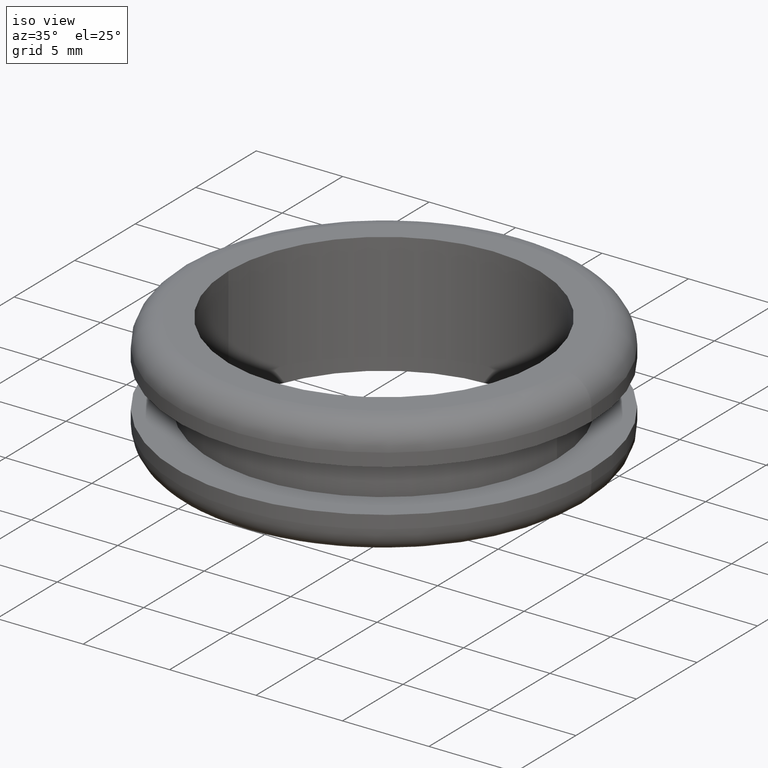
[diagram: clean part render]
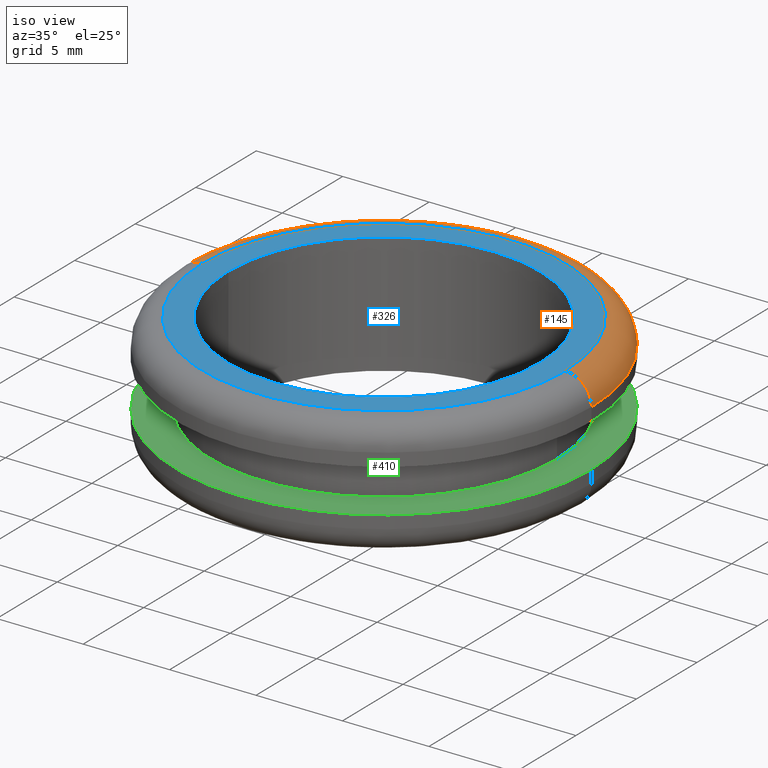
[diagram: same view with three faces highlighted in distinct colors, each labeled with its STEP entity id]
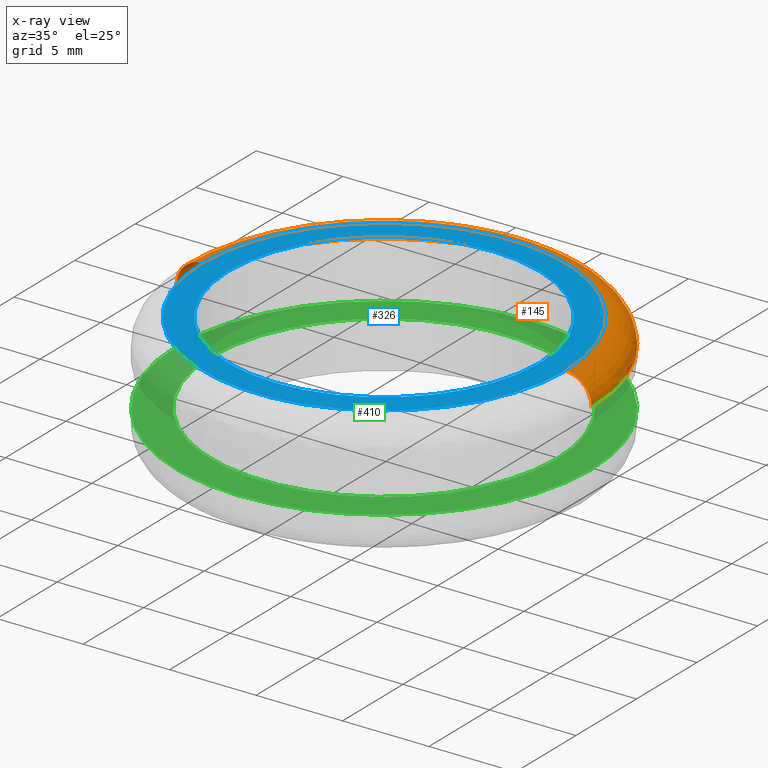
[diagram: x-ray of the same camera — body ghosted, the three highlighted faces saturated]
A machine part, iso view with three faces highlighted in distinct colors.
The next image is the same camera in x-ray (body ghosted, the three faces saturated) — at least one of them is partly hidden behind the body in this view.
Their STEP definitions:

[orange] entity #145 — the highlighted toroidal blend (fillet) surface has major radius 10.5 mm and minor (blend) radius 1.5 mm.
#18 = VERTEX_POINT ( 'NONE', #193 ) ;
#20 = DIRECTION ( 'NONE',  ( -1.000000000000000000, 0.0000000000000000000, 0.0000000000000000000 ) ) ;
#23 = CARTESIAN_POINT ( 'NONE',  ( 115.3968217177771200, 1.285879139105933300E-015, 147.3594493936724100 ) ) ;
#29 = EDGE_LOOP ( 'NONE', ( #378, #435, #438, #322 ) ) ;
#46 = EDGE_CURVE ( 'NONE', #411, #18, #302, .T. ) ;
#47 = CARTESIAN_POINT ( 'NONE',  ( 104.8968217177672100, 0.0000000000000000000, 147.3594493936724100 ) ) ;
#56 = DIRECTION ( 'NONE',  ( -1.000000000000000000, -1.224646799147352000E-016, 0.0000000000000000000 ) ) ;
#71 = CARTESIAN_POINT ( 'NONE',  ( 92.89682171775730500, 0.0000000000000000000, 147.3594493936724100 ) ) ;
#74 = CIRCLE ( 'NONE', #232, 10.50000000001000100 ) ;
#95 = EDGE_CURVE ( 'NONE', #296, #106, #74, .T. ) ;
#97 = CARTESIAN_POINT ( 'NONE',  ( 94.39682171775720600, 0.0000000000000000000, 148.8594493936722100 ) ) ;
#106 = VERTEX_POINT ( 'NONE', #338 ) ;
#129 = DIRECTION ( 'NONE',  ( -0.0000000000000000000, -1.000000000000000000, -0.0000000000000000000 ) ) ;
#130 = DIRECTION ( 'NONE',  ( -1.000000000000000000, 0.0000000000000000000, 0.0000000000000000000 ) ) ;
#142 = EDGE_CURVE ( 'NONE', #106, #18, #244, .T. ) ;
#143 = AXIS2_PLACEMENT_3D ( 'NONE', #271, #460, #130 ) ;
#145 = ADVANCED_FACE ( 'NONE', ( #260 ), #342, .T. ) ;
#184 = EDGE_CURVE ( 'NONE', #296, #411, #233, .T. ) ;
#189 = DIRECTION ( 'NONE',  ( 0.0000000000000000000, 0.0000000000000000000, -1.000000000000000000 ) ) ;
#193 = CARTESIAN_POINT ( 'NONE',  ( 116.8968217177771200, 1.469576158978036200E-015, 147.3594493936724100 ) ) ;
#218 = CARTESIAN_POINT ( 'NONE',  ( 104.8968217177672100, 0.0000000000000000000, 148.8594493936722100 ) ) ;
#224 = DIRECTION ( 'NONE',  ( -1.224646799147353200E-016, 1.000000000000000000, 0.0000000000000000000 ) ) ;
#232 = AXIS2_PLACEMENT_3D ( 'NONE', #218, #189, #420 ) ;
#233 = CIRCLE ( 'NONE', #439, 1.500000000000001300 ) ;
#244 = CIRCLE ( 'NONE', #283, 1.500000000000001300 ) ;
#249 = DIRECTION ( 'NONE',  ( 0.0000000000000000000, 0.0000000000000000000, -1.000000000000000000 ) ) ;
#260 = FACE_OUTER_BOUND ( 'NONE', #29, .T. ) ;
#271 = CARTESIAN_POINT ( 'NONE',  ( 104.8968217177672100, 0.0000000000000000000, 147.3594493936724100 ) ) ;
#283 = AXIS2_PLACEMENT_3D ( 'NONE', #23, #224, #56 ) ;
#296 = VERTEX_POINT ( 'NONE', #97 ) ;
#302 = CIRCLE ( 'NONE', #143, 12.00000000000990500 ) ;
#322 = ORIENTED_EDGE ( 'NONE', *, *, #184, .F. ) ;
#338 = CARTESIAN_POINT ( 'NONE',  ( 115.3968217177772100, 1.377727649041991000E-015, 148.8594493936722100 ) ) ;
#342 = TOROIDAL_SURFACE ( 'NONE', #400, 10.50000000000990100, 1.500000000000000000 ) ;
#378 = ORIENTED_EDGE ( 'NONE', *, *, #95, .T. ) ;
#400 = AXIS2_PLACEMENT_3D ( 'NONE', #47, #422, #20 ) ;
#411 = VERTEX_POINT ( 'NONE', #71 ) ;
#420 = DIRECTION ( 'NONE',  ( -1.000000000000000000, 0.0000000000000000000, 0.0000000000000000000 ) ) ;
#422 = DIRECTION ( 'NONE',  ( 0.0000000000000000000, 0.0000000000000000000, -1.000000000000000000 ) ) ;
#435 = ORIENTED_EDGE ( 'NONE', *, *, #142, .T. ) ;
#438 = ORIENTED_EDGE ( 'NONE', *, *, #46, .F. ) ;
#439 = AXIS2_PLACEMENT_3D ( 'NONE', #453, #129, #249 ) ;
#453 = CARTESIAN_POINT ( 'NONE',  ( 94.39682171775730500, 0.0000000000000000000, 147.3594493936724100 ) ) ;
#460 = DIRECTION ( 'NONE',  ( 0.0000000000000000000, 0.0000000000000000000, -1.000000000000000000 ) ) ;

[blue] entity #326 — the highlighted planar face has unit normal (0, 0, -1).
#14 = DIRECTION ( 'NONE',  ( -1.000000000000000000, 0.0000000000000000000, 0.0000000000000000000 ) ) ;
#21 = EDGE_CURVE ( 'NONE', #343, #465, #197, .T. ) ;
#44 = ORIENTED_EDGE ( 'NONE', *, *, #95, .F. ) ;
#55 = CARTESIAN_POINT ( 'NONE',  ( 113.8968217177772000, 0.0000000000000000000, 148.8594493936722100 ) ) ;
#74 = CIRCLE ( 'NONE', #232, 10.50000000001000100 ) ;
#93 = CARTESIAN_POINT ( 'NONE',  ( 104.8968217177672100, 0.0000000000000000000, 148.8594493936722100 ) ) ;
#95 = EDGE_CURVE ( 'NONE', #296, #106, #74, .T. ) ;
#96 = AXIS2_PLACEMENT_3D ( 'NONE', #392, #132, #350 ) ;
#97 = CARTESIAN_POINT ( 'NONE',  ( 94.39682171775720600, 0.0000000000000000000, 148.8594493936722100 ) ) ;
#106 = VERTEX_POINT ( 'NONE', #338 ) ;
#132 = DIRECTION ( 'NONE',  ( 0.0000000000000000000, 0.0000000000000000000, -1.000000000000000000 ) ) ;
#135 = EDGE_LOOP ( 'NONE', ( #309, #324 ) ) ;
#139 = AXIS2_PLACEMENT_3D ( 'NONE', #55, #379, #298 ) ;
#144 = CARTESIAN_POINT ( 'NONE',  ( 95.89682171775730500, 0.0000000000000000000, 148.8594493936722100 ) ) ;
#189 = DIRECTION ( 'NONE',  ( 0.0000000000000000000, 0.0000000000000000000, -1.000000000000000000 ) ) ;
#197 = CIRCLE ( 'NONE', #96, 9.000000000009903200 ) ;
#206 = EDGE_CURVE ( 'NONE', #465, #343, #220, .T. ) ;
#210 = CARTESIAN_POINT ( 'NONE',  ( 104.8968217177672100, 0.0000000000000000000, 148.8594493936722100 ) ) ;
#213 = CARTESIAN_POINT ( 'NONE',  ( 113.8968217177771200, 1.102182119233829800E-015, 148.8594493936722100 ) ) ;
#218 = CARTESIAN_POINT ( 'NONE',  ( 104.8968217177672100, 0.0000000000000000000, 148.8594493936722100 ) ) ;
#220 = CIRCLE ( 'NONE', #266, 9.000000000009903200 ) ;
#226 = DIRECTION ( 'NONE',  ( -1.000000000000000000, 0.0000000000000000000, 0.0000000000000000000 ) ) ;
#232 = AXIS2_PLACEMENT_3D ( 'NONE', #218, #189, #420 ) ;
#256 = EDGE_CURVE ( 'NONE', #106, #296, #413, .T. ) ;
#266 = AXIS2_PLACEMENT_3D ( 'NONE', #210, #313, #226 ) ;
#276 = FACE_OUTER_BOUND ( 'NONE', #303, .T. ) ;
#296 = VERTEX_POINT ( 'NONE', #97 ) ;
#298 = DIRECTION ( 'NONE',  ( -1.000000000000000000, 0.0000000000000000000, 0.0000000000000000000 ) ) ;
#300 = ORIENTED_EDGE ( 'NONE', *, *, #256, .F. ) ;
#303 = EDGE_LOOP ( 'NONE', ( #44, #300 ) ) ;
#307 = DIRECTION ( 'NONE',  ( 0.0000000000000000000, 0.0000000000000000000, -1.000000000000000000 ) ) ;
#309 = ORIENTED_EDGE ( 'NONE', *, *, #206, .T. ) ;
#313 = DIRECTION ( 'NONE',  ( 0.0000000000000000000, 0.0000000000000000000, -1.000000000000000000 ) ) ;
#324 = ORIENTED_EDGE ( 'NONE', *, *, #21, .T. ) ;
#326 = ADVANCED_FACE ( 'NONE', ( #276, #389 ), #450, .F. ) ;
#338 = CARTESIAN_POINT ( 'NONE',  ( 115.3968217177772100, 1.377727649041991000E-015, 148.8594493936722100 ) ) ;
#343 = VERTEX_POINT ( 'NONE', #213 ) ;
#350 = DIRECTION ( 'NONE',  ( -1.000000000000000000, 0.0000000000000000000, 0.0000000000000000000 ) ) ;
#379 = DIRECTION ( 'NONE',  ( 0.0000000000000000000, 0.0000000000000000000, -1.000000000000000000 ) ) ;
#389 = FACE_BOUND ( 'NONE', #135, .T. ) ;
#392 = CARTESIAN_POINT ( 'NONE',  ( 104.8968217177672100, 0.0000000000000000000, 148.8594493936722100 ) ) ;
#401 = AXIS2_PLACEMENT_3D ( 'NONE', #93, #307, #14 ) ;
#413 = CIRCLE ( 'NONE', #401, 10.50000000001000100 ) ;
#420 = DIRECTION ( 'NONE',  ( -1.000000000000000000, 0.0000000000000000000, 0.0000000000000000000 ) ) ;
#450 = PLANE ( 'NONE',  #139 ) ;
#465 = VERTEX_POINT ( 'NONE', #144 ) ;

[green] entity #410 — the highlighted planar face has unit normal (0, 0, -1).
#17 = AXIS2_PLACEMENT_3D ( 'NONE', #190, #157, #387 ) ;
#24 = VERTEX_POINT ( 'NONE', #311 ) ;
#31 = DIRECTION ( 'NONE',  ( 0.0000000000000000000, 0.0000000000000000000, -1.000000000000000000 ) ) ;
#39 = CARTESIAN_POINT ( 'NONE',  ( 116.8968217177771200, 1.469576158978035600E-015, 144.1094493936956000 ) ) ;
#67 = ORIENTED_EDGE ( 'NONE', *, *, #299, .F. ) ;
#79 = CARTESIAN_POINT ( 'NONE',  ( 114.8968217177772000, 0.0000000000000000000, 144.1094493936956000 ) ) ;
#80 = DIRECTION ( 'NONE',  ( 0.0000000000000000000, 0.0000000000000000000, -1.000000000000000000 ) ) ;
#90 = CIRCLE ( 'NONE', #393, 10.00000000000990300 ) ;
#91 = CARTESIAN_POINT ( 'NONE',  ( 94.89682171775730500, 0.0000000000000000000, 144.1094493936956000 ) ) ;
#101 = ORIENTED_EDGE ( 'NONE', *, *, #215, .F. ) ;
#111 = PLANE ( 'NONE',  #359 ) ;
#113 = CIRCLE ( 'NONE', #17, 12.00000000000990500 ) ;
#127 = CIRCLE ( 'NONE', #320, 12.00000000000990500 ) ;
#147 = EDGE_LOOP ( 'NONE', ( #160, #292 ) ) ;
#157 = DIRECTION ( 'NONE',  ( 0.0000000000000000000, 0.0000000000000000000, -1.000000000000000000 ) ) ;
#160 = ORIENTED_EDGE ( 'NONE', *, *, #452, .T. ) ;
#190 = CARTESIAN_POINT ( 'NONE',  ( 104.8968217177672100, 0.0000000000000000000, 144.1094493936956000 ) ) ;
#209 = DIRECTION ( 'NONE',  ( 0.0000000000000000000, 0.0000000000000000000, -1.000000000000000000 ) ) ;
#211 = CIRCLE ( 'NONE', #373, 10.00000000000990300 ) ;
#215 = EDGE_CURVE ( 'NONE', #24, #279, #127, .T. ) ;
#216 = VERTEX_POINT ( 'NONE', #314 ) ;
#217 = FACE_BOUND ( 'NONE', #147, .T. ) ;
#227 = EDGE_LOOP ( 'NONE', ( #101, #67 ) ) ;
#238 = EDGE_CURVE ( 'NONE', #216, #369, #211, .T. ) ;
#239 = DIRECTION ( 'NONE',  ( -1.000000000000000000, 0.0000000000000000000, 0.0000000000000000000 ) ) ;
#240 = CARTESIAN_POINT ( 'NONE',  ( 104.8968217177672100, 0.0000000000000000000, 144.1094493936956000 ) ) ;
#251 = DIRECTION ( 'NONE',  ( -1.000000000000000000, 0.0000000000000000000, 0.0000000000000000000 ) ) ;
#279 = VERTEX_POINT ( 'NONE', #39 ) ;
#285 = FACE_OUTER_BOUND ( 'NONE', #227, .T. ) ;
#291 = CARTESIAN_POINT ( 'NONE',  ( 104.8968217177672100, 0.0000000000000000000, 144.1094493936956000 ) ) ;
#292 = ORIENTED_EDGE ( 'NONE', *, *, #238, .T. ) ;
#299 = EDGE_CURVE ( 'NONE', #279, #24, #113, .T. ) ;
#301 = CARTESIAN_POINT ( 'NONE',  ( 104.8968217177672100, 0.0000000000000000000, 144.1094493936956000 ) ) ;
#311 = CARTESIAN_POINT ( 'NONE',  ( 92.89682171775730500, 0.0000000000000000000, 144.1094493936956000 ) ) ;
#314 = CARTESIAN_POINT ( 'NONE',  ( 114.8968217177771200, 1.224646799148565100E-015, 144.1094493936956000 ) ) ;
#320 = AXIS2_PLACEMENT_3D ( 'NONE', #301, #418, #251 ) ;
#330 = DIRECTION ( 'NONE',  ( -1.000000000000000000, 0.0000000000000000000, 0.0000000000000000000 ) ) ;
#359 = AXIS2_PLACEMENT_3D ( 'NONE', #79, #209, #471 ) ;
#369 = VERTEX_POINT ( 'NONE', #91 ) ;
#373 = AXIS2_PLACEMENT_3D ( 'NONE', #291, #80, #330 ) ;
#387 = DIRECTION ( 'NONE',  ( -1.000000000000000000, 0.0000000000000000000, 0.0000000000000000000 ) ) ;
#393 = AXIS2_PLACEMENT_3D ( 'NONE', #240, #31, #239 ) ;
#410 = ADVANCED_FACE ( 'NONE', ( #285, #217 ), #111, .F. ) ;
#418 = DIRECTION ( 'NONE',  ( 0.0000000000000000000, 0.0000000000000000000, -1.000000000000000000 ) ) ;
#452 = EDGE_CURVE ( 'NONE', #369, #216, #90, .T. ) ;
#471 = DIRECTION ( 'NONE',  ( -1.000000000000000000, 0.0000000000000000000, 0.0000000000000000000 ) ) ;